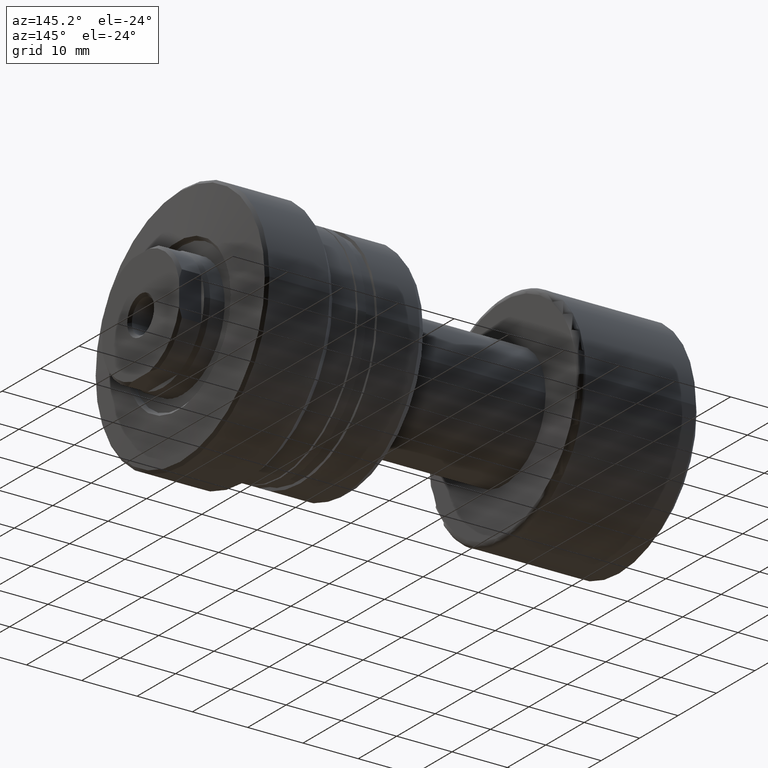
[diagram: clean part render]
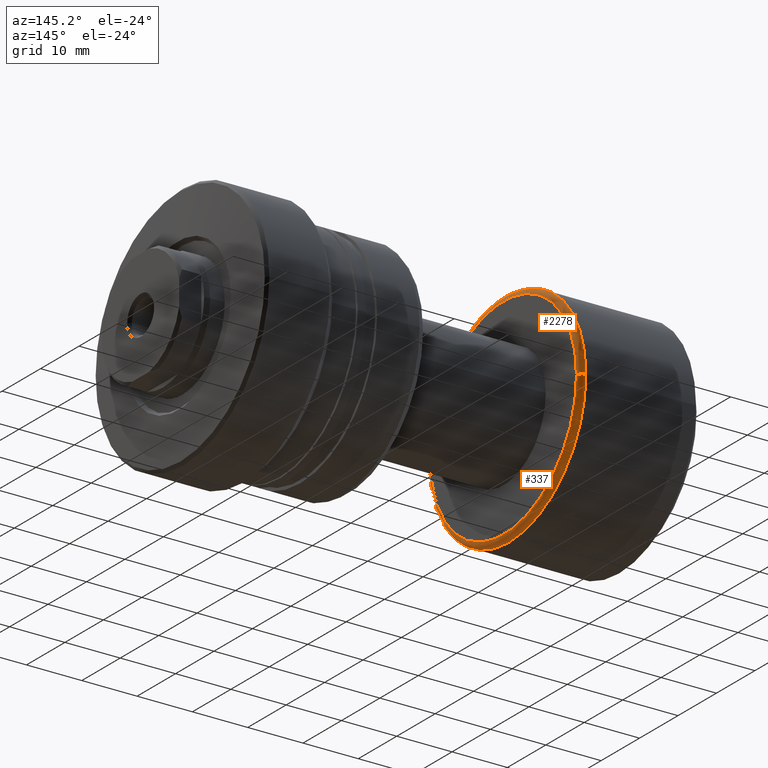
[diagram: same view with one multi-face feature highlighted, each face labeled with its STEP entity id]
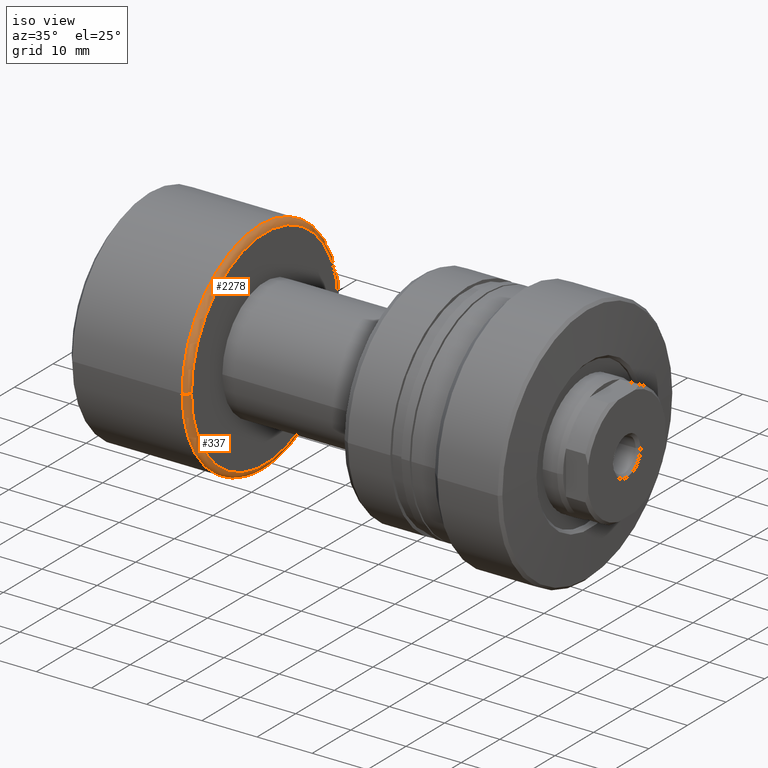
[diagram: same view with one multi-face feature highlighted, each face labeled with its STEP entity id]
A machine part, auxiliary view. The highlighted faces form ONE feature: a constant-radius fillet chain: 2 tangent blend faces with common blend radius 1 mm. The faces share edges in the B-rep.
A second angle (iso view) of the same feature is appended — it is thin or edge-on in the first view.
Their STEP definitions:
[1] entity #337 (Torus):
#20 = VERTEX_POINT ( 'NONE', #2271 ) ;
#145 = CARTESIAN_POINT ( 'NONE',  ( 21.40000000000000213, -20.00000000000000000, 0.000000000000000000 ) ) ;
#230 = ORIENTED_EDGE ( 'NONE', *, *, #2259, .F. ) ;
#266 = DIRECTION ( 'NONE',  ( -1.000000000000000000, 0.000000000000000000, 0.000000000000000000 ) ) ;
#275 = TOROIDAL_SURFACE ( 'NONE', #1449, 19.00000000000000000, 1.000000000000000888 ) ;
#299 = DIRECTION ( 'NONE',  ( -1.000000000000000000, -1.069542322069065801E-17, -0.000000000000000000 ) ) ;
#308 = DIRECTION ( 'NONE',  ( 1.069542322069065801E-17, -1.000000000000000000, 0.000000000000000000 ) ) ;
#337 = ADVANCED_FACE ( 'NONE', ( #2325 ), #275, .T. ) ;
#361 = CIRCLE ( 'NONE', #1027, 1.000000000000000888 ) ;
#388 = DIRECTION ( 'NONE',  ( 0.000000000000000000, -1.000000000000000000, 0.000000000000000000 ) ) ;
#491 = DIRECTION ( 'NONE',  ( 0.000000000000000000, -1.000000000000000000, 0.000000000000000000 ) ) ;
#522 = ORIENTED_EDGE ( 'NONE', *, *, #1522, .T. ) ;
#668 = CARTESIAN_POINT ( 'NONE',  ( 21.39999999999999858, 0.000000000000000000, 0.000000000000000000 ) ) ;
#749 = VERTEX_POINT ( 'NONE', #1806 ) ;
#762 = EDGE_LOOP ( 'NONE', ( #1705, #522, #2229, #230 ) ) ;
#828 = CARTESIAN_POINT ( 'NONE',  ( 21.39999999999999858, -19.00000000000000000, 0.000000000000000000 ) ) ;
#833 = CARTESIAN_POINT ( 'NONE',  ( 21.40000000000000213, 2.288820569227801297E-16, 0.000000000000000000 ) ) ;
#882 = AXIS2_PLACEMENT_3D ( 'NONE', #1161, #1317, #388 ) ;
#1027 = AXIS2_PLACEMENT_3D ( 'NONE', #1919, #1199, #1714 ) ;
#1087 = EDGE_CURVE ( 'NONE', #2437, #749, #361, .T. ) ;
#1161 = CARTESIAN_POINT ( 'NONE',  ( 22.39999999999999858, 2.395774801434707739E-16, 0.000000000000000000 ) ) ;
#1199 = DIRECTION ( 'NONE',  ( 1.309811581274509052E-33, -1.224646799147353207E-16, 1.000000000000000000 ) ) ;
#1204 = DIRECTION ( 'NONE',  ( -1.000000000000000000, -1.069542322069065801E-17, -0.000000000000000000 ) ) ;
#1296 = CIRCLE ( 'NONE', #882, 19.00000000000000000 ) ;
#1313 = AXIS2_PLACEMENT_3D ( 'NONE', #833, #299, #491 ) ;
#1317 = DIRECTION ( 'NONE',  ( -1.000000000000000000, -1.069542322069065801E-17, -0.000000000000000000 ) ) ;
#1382 = DIRECTION ( 'NONE',  ( 0.000000000000000000, 0.000000000000000000, -1.000000000000000000 ) ) ;
#1449 = AXIS2_PLACEMENT_3D ( 'NONE', #668, #1204, #308 ) ;
#1473 = CARTESIAN_POINT ( 'NONE',  ( 22.39999999999999858, 19.00000000000000000, 2.388061258337338939E-15 ) ) ;
#1522 = EDGE_CURVE ( 'NONE', #2437, #20, #1296, .T. ) ;
#1577 = CIRCLE ( 'NONE', #1313, 20.00000000000000000 ) ;
#1705 = ORIENTED_EDGE ( 'NONE', *, *, #1087, .F. ) ;
#1714 = DIRECTION ( 'NONE',  ( 0.000000000000000000, -1.000000000000000000, -1.224646799147353454E-16 ) ) ;
#1806 = CARTESIAN_POINT ( 'NONE',  ( 21.40000000000000213, 20.00000000000000000, 2.449293598294706513E-15 ) ) ;
#1919 = CARTESIAN_POINT ( 'NONE',  ( 21.39999999999999858, 19.00000000000000000, 2.326828918379970970E-15 ) ) ;
#2141 = EDGE_CURVE ( 'NONE', #20, #2432, #2326, .T. ) ;
#2229 = ORIENTED_EDGE ( 'NONE', *, *, #2141, .T. ) ;
#2259 = EDGE_CURVE ( 'NONE', #749, #2432, #1577, .T. ) ;
#2271 = CARTESIAN_POINT ( 'NONE',  ( 22.39999999999999858, -19.00000000000000000, 0.000000000000000000 ) ) ;
#2325 = FACE_OUTER_BOUND ( 'NONE', #762, .T. ) ;
#2326 = CIRCLE ( 'NONE', #2371, 1.000000000000000888 ) ;
#2371 = AXIS2_PLACEMENT_3D ( 'NONE', #828, #1382, #266 ) ;
#2432 = VERTEX_POINT ( 'NONE', #145 ) ;
#2437 = VERTEX_POINT ( 'NONE', #1473 ) ;
[2] entity #2278 (Torus):
#20 = VERTEX_POINT ( 'NONE', #2271 ) ;
#135 = DIRECTION ( 'NONE',  ( 1.069542322069065801E-17, -1.000000000000000000, 0.000000000000000000 ) ) ;
#145 = CARTESIAN_POINT ( 'NONE',  ( 21.40000000000000213, -20.00000000000000000, 0.000000000000000000 ) ) ;
#243 = FACE_OUTER_BOUND ( 'NONE', #413, .T. ) ;
#266 = DIRECTION ( 'NONE',  ( -1.000000000000000000, 0.000000000000000000, 0.000000000000000000 ) ) ;
#317 = EDGE_CURVE ( 'NONE', #20, #2437, #672, .T. ) ;
#361 = CIRCLE ( 'NONE', #1027, 1.000000000000000888 ) ;
#413 = EDGE_LOOP ( 'NONE', ( #2420, #2444, #1939, #1037 ) ) ;
#424 = CARTESIAN_POINT ( 'NONE',  ( 22.39999999999999858, 2.395774801434707739E-16, 0.000000000000000000 ) ) ;
#448 = DIRECTION ( 'NONE',  ( -1.000000000000000000, -1.069542322069065801E-17, -0.000000000000000000 ) ) ;
#645 = DIRECTION ( 'NONE',  ( 0.000000000000000000, -1.000000000000000000, 0.000000000000000000 ) ) ;
#672 = CIRCLE ( 'NONE', #2351, 19.00000000000000000 ) ;
#749 = VERTEX_POINT ( 'NONE', #1806 ) ;
#828 = CARTESIAN_POINT ( 'NONE',  ( 21.39999999999999858, -19.00000000000000000, 0.000000000000000000 ) ) ;
#1027 = AXIS2_PLACEMENT_3D ( 'NONE', #1919, #1199, #1714 ) ;
#1037 = ORIENTED_EDGE ( 'NONE', *, *, #2141, .F. ) ;
#1087 = EDGE_CURVE ( 'NONE', #2437, #749, #361, .T. ) ;
#1177 = DIRECTION ( 'NONE',  ( -1.000000000000000000, -1.069542322069065801E-17, -0.000000000000000000 ) ) ;
#1198 = AXIS2_PLACEMENT_3D ( 'NONE', #2312, #448, #645 ) ;
#1199 = DIRECTION ( 'NONE',  ( 1.309811581274509052E-33, -1.224646799147353207E-16, 1.000000000000000000 ) ) ;
#1382 = DIRECTION ( 'NONE',  ( 0.000000000000000000, 0.000000000000000000, -1.000000000000000000 ) ) ;
#1473 = CARTESIAN_POINT ( 'NONE',  ( 22.39999999999999858, 19.00000000000000000, 2.388061258337338939E-15 ) ) ;
#1714 = DIRECTION ( 'NONE',  ( 0.000000000000000000, -1.000000000000000000, -1.224646799147353454E-16 ) ) ;
#1741 = CARTESIAN_POINT ( 'NONE',  ( 21.39999999999999858, 0.000000000000000000, 0.000000000000000000 ) ) ;
#1806 = CARTESIAN_POINT ( 'NONE',  ( 21.40000000000000213, 20.00000000000000000, 2.449293598294706513E-15 ) ) ;
#1919 = CARTESIAN_POINT ( 'NONE',  ( 21.39999999999999858, 19.00000000000000000, 2.326828918379970970E-15 ) ) ;
#1922 = DIRECTION ( 'NONE',  ( 0.000000000000000000, -1.000000000000000000, 0.000000000000000000 ) ) ;
#1937 = TOROIDAL_SURFACE ( 'NONE', #2254, 19.00000000000000000, 1.000000000000000888 ) ;
#1939 = ORIENTED_EDGE ( 'NONE', *, *, #2170, .F. ) ;
#2141 = EDGE_CURVE ( 'NONE', #20, #2432, #2326, .T. ) ;
#2170 = EDGE_CURVE ( 'NONE', #2432, #749, #2216, .T. ) ;
#2197 = DIRECTION ( 'NONE',  ( -1.000000000000000000, -1.069542322069065801E-17, -0.000000000000000000 ) ) ;
#2216 = CIRCLE ( 'NONE', #1198, 20.00000000000000000 ) ;
#2254 = AXIS2_PLACEMENT_3D ( 'NONE', #1741, #2197, #135 ) ;
#2271 = CARTESIAN_POINT ( 'NONE',  ( 22.39999999999999858, -19.00000000000000000, 0.000000000000000000 ) ) ;
#2278 = ADVANCED_FACE ( 'NONE', ( #243 ), #1937, .T. ) ;
#2312 = CARTESIAN_POINT ( 'NONE',  ( 21.40000000000000213, 2.288820569227801297E-16, 0.000000000000000000 ) ) ;
#2326 = CIRCLE ( 'NONE', #2371, 1.000000000000000888 ) ;
#2351 = AXIS2_PLACEMENT_3D ( 'NONE', #424, #1177, #1922 ) ;
#2371 = AXIS2_PLACEMENT_3D ( 'NONE', #828, #1382, #266 ) ;
#2420 = ORIENTED_EDGE ( 'NONE', *, *, #317, .T. ) ;
#2432 = VERTEX_POINT ( 'NONE', #145 ) ;
#2437 = VERTEX_POINT ( 'NONE', #1473 ) ;
#2444 = ORIENTED_EDGE ( 'NONE', *, *, #1087, .T. ) ;